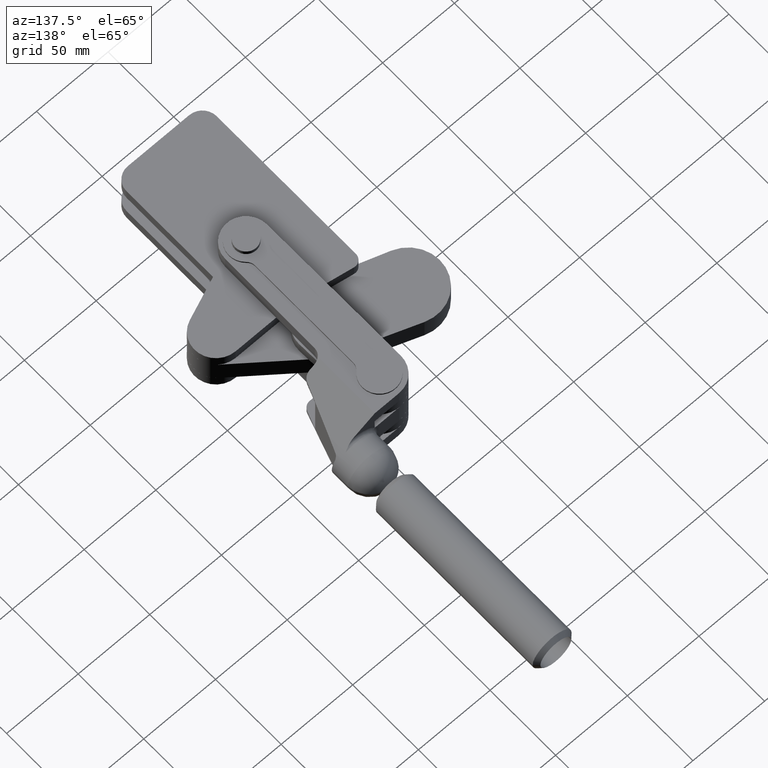
[diagram: clean part render]
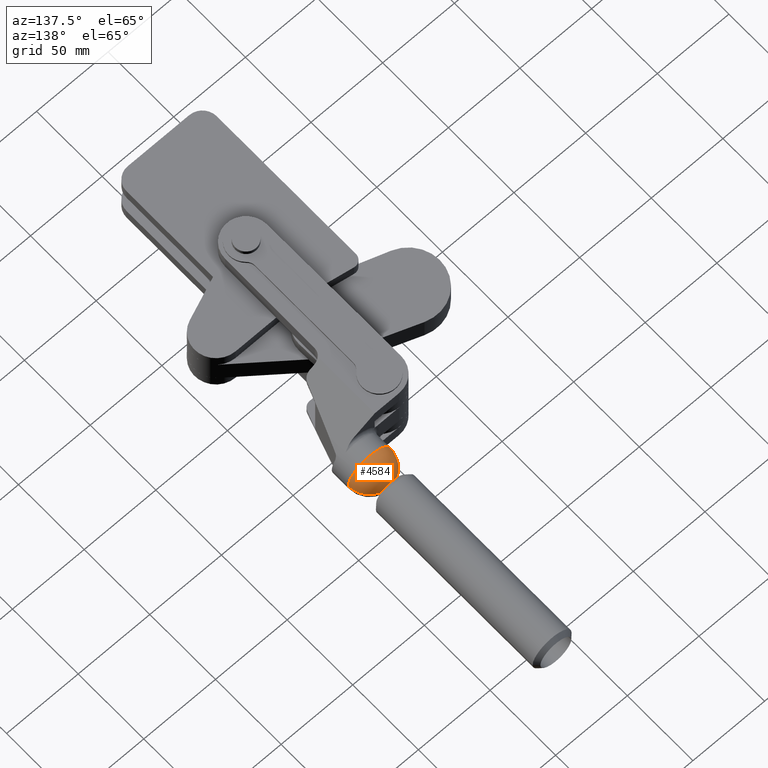
[diagram: same view with one face highlighted and labeled with its STEP entity id]
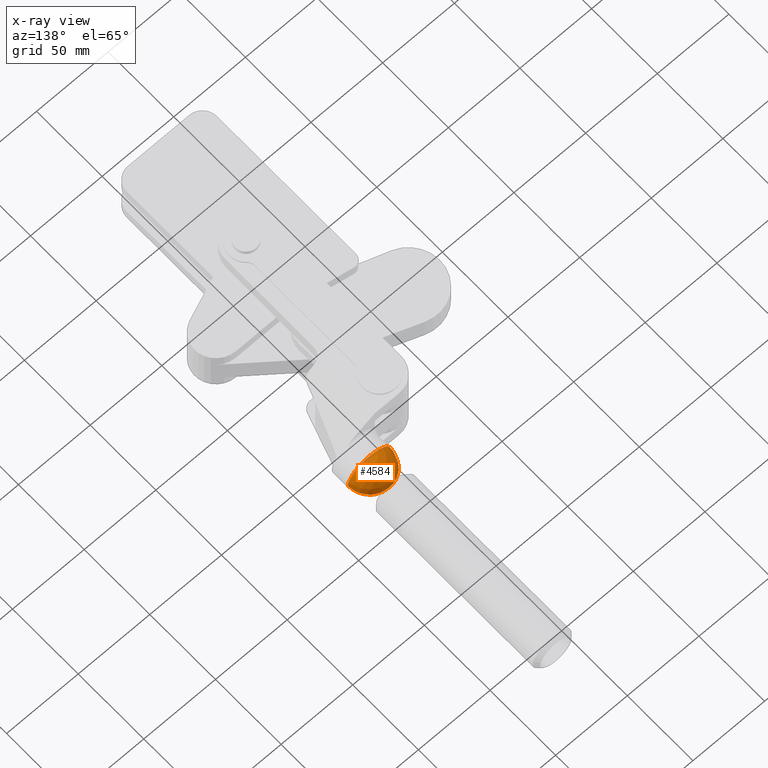
[diagram: x-ray of the same camera — body ghosted, the highlighted face saturated]
A machine part, auxiliary view. The second image highlights one B-rep face of the part: STEP entity #4584.
The next image is the same camera in x-ray: the body ghosted, the highlighted face saturated — about 0% of this face is hidden behind the body in this view.
In plain terms, the highlighted spherical surface has radius 15 mm.
Its self-contained STEP definition (entity closure, byte-faithful):
#320 = DIRECTION ( 'NONE',  ( 1.000000000000000000, 0.0000000000000000000, 1.228762462150250800E-016 ) ) ;
#546 = VERTEX_POINT ( 'NONE', #4852 ) ;
#831 = CIRCLE ( 'NONE', #2882, 14.99999999999984700 ) ;
#884 = EDGE_LOOP ( 'NONE', ( #2741, #2692, #5218 ) ) ;
#994 = AXIS2_PLACEMENT_3D ( 'NONE', #4654, #2025, #5098 ) ;
#1396 = CARTESIAN_POINT ( 'NONE',  ( -125.9537911822583000, 179.9505953728539400, -0.5924162648272366400 ) ) ;
#1418 = DIRECTION ( 'NONE',  ( -1.000000000000000000, -1.850371707708613300E-015, 0.0000000000000000000 ) ) ;
#1447 = CARTESIAN_POINT ( 'NONE',  ( -125.9537911822583000, 179.9505953728539400, -0.5924162648272366400 ) ) ;
#1594 = CIRCLE ( 'NONE', #4609, 14.99999999999984700 ) ;
#1858 = CARTESIAN_POINT ( 'NONE',  ( -125.9537911822583300, 194.9505953728537700, -0.5924162648272366400 ) ) ;
#1885 = DIRECTION ( 'NONE',  ( -1.000000000000000000, 0.0000000000000000000, 0.0000000000000000000 ) ) ;
#2025 = DIRECTION ( 'NONE',  ( -2.306954303176414100E-015, 1.000000000000000000, -3.234600765087467100E-022 ) ) ;
#2086 = VERTEX_POINT ( 'NONE', #1858 ) ;
#2692 = ORIENTED_EDGE ( 'NONE', *, *, #4850, .T. ) ;
#2741 = ORIENTED_EDGE ( 'NONE', *, *, #3390, .T. ) ;
#2882 = AXIS2_PLACEMENT_3D ( 'NONE', #5588, #2934, #320 ) ;
#2934 = DIRECTION ( 'NONE',  ( -1.224650381289475900E-016, 3.234600762262255300E-022, 1.000000000000000000 ) ) ;
#3006 = SPHERICAL_SURFACE ( 'NONE', #3291, 14.99999999999984400 ) ;
#3159 = DIRECTION ( 'NONE',  ( -5.985213741450483800E-037, 3.234600765087467100E-022, 1.000000000000000000 ) ) ;
#3291 = AXIS2_PLACEMENT_3D ( 'NONE', #1396, #3159, #1418 ) ;
#3390 = EDGE_CURVE ( 'NONE', #4684, #546, #4697, .T. ) ;
#3775 = EDGE_CURVE ( 'NONE', #4684, #2086, #1594, .T. ) ;
#4179 = FACE_OUTER_BOUND ( 'NONE', #884, .T. ) ;
#4513 = DIRECTION ( 'NONE',  ( 3.582142122470277700E-022, -3.234600765087459100E-022, -1.000000000000000000 ) ) ;
#4584 = ADVANCED_FACE ( 'NONE', ( #4179 ), #3006, .T. ) ;
#4609 = AXIS2_PLACEMENT_3D ( 'NONE', #1447, #4513, #1885 ) ;
#4654 = CARTESIAN_POINT ( 'NONE',  ( -125.9537911822583000, 179.9505953728575800, -0.5924162648272366400 ) ) ;
#4684 = VERTEX_POINT ( 'NONE', #5450 ) ;
#4697 = CIRCLE ( 'NONE', #994, 14.99999999999984700 ) ;
#4850 = EDGE_CURVE ( 'NONE', #546, #2086, #831, .T. ) ;
#4852 = CARTESIAN_POINT ( 'NONE',  ( -110.9537911822584600, 179.9505953728576100, -0.5924162648272348600 ) ) ;
#5098 = DIRECTION ( 'NONE',  ( -1.000000000000000000, -1.850371707708612900E-015, 0.0000000000000000000 ) ) ;
#5218 = ORIENTED_EDGE ( 'NONE', *, *, #3775, .F. ) ;
#5450 = CARTESIAN_POINT ( 'NONE',  ( -140.9537911822581600, 179.9505953728575500, -0.5924162648272366400 ) ) ;
#5588 = CARTESIAN_POINT ( 'NONE',  ( -125.9537911822583000, 179.9505953728539400, -0.5924162648272366400 ) ) ;